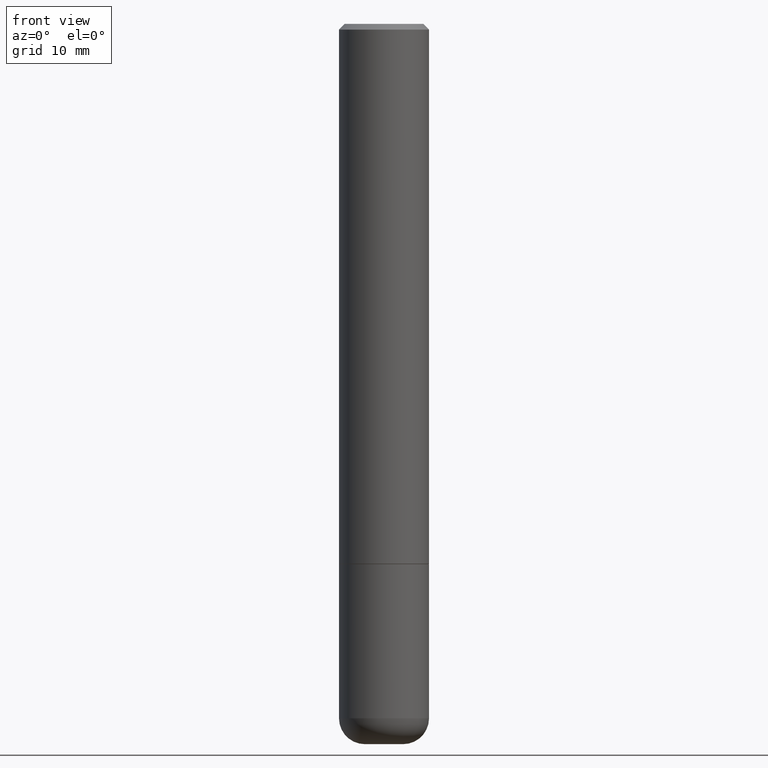
[diagram: clean part render]
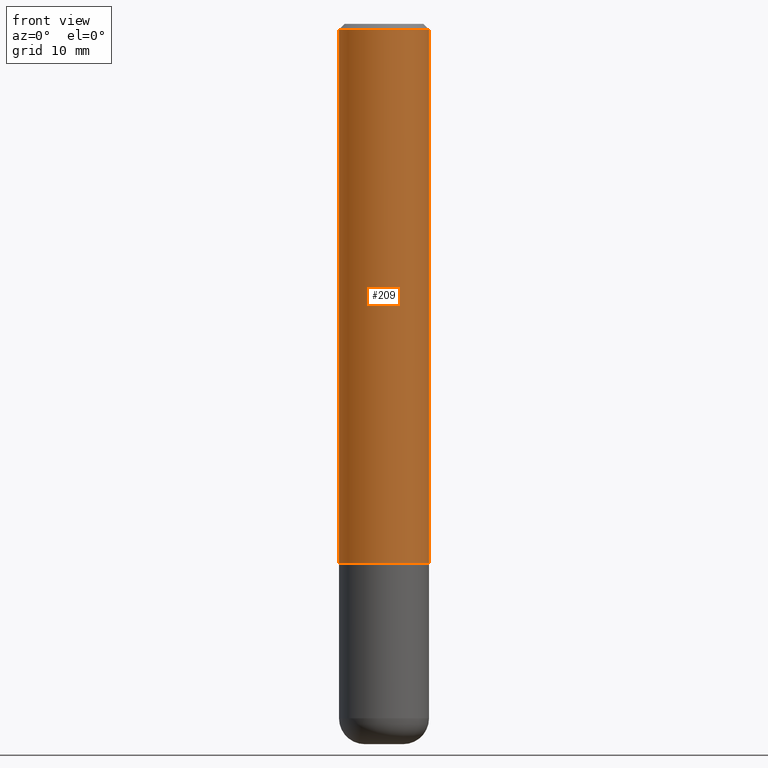
[diagram: same view with one face highlighted and labeled with its STEP entity id]
A machine part, front view. The second image highlights one B-rep face of the part: STEP entity #209.
In plain terms, the highlighted cylindrical surface (partial cylindrical patch) has radius 3.9688 mm, axis along (-0, 0, 1).
Its self-contained STEP definition (entity closure, byte-faithful):
#22 = ORIENTED_EDGE ( 'NONE', *, *, #246, .F. ) ;
#23 = CARTESIAN_POINT ( 'NONE',  ( 0.1562500000000001388, -1.091087918388480160E-15, 7.619026212181157383E-30 ) ) ;
#28 = DIRECTION ( 'NONE',  ( 1.000000000000000000, -6.982962677686266711E-15, 0.000000000000000000 ) ) ;
#36 = CARTESIAN_POINT ( 'NONE',  ( 0.1562500000000002220, -7.634123947380535662E-15, -1.874000000000000110 ) ) ;
#37 = DIRECTION ( 'NONE',  ( -2.445468806185136597E-29, 3.491481338843145583E-15, 1.000000000000000000 ) ) ;
#55 = ORIENTED_EDGE ( 'NONE', *, *, #94, .T. ) ;
#56 = CARTESIAN_POINT ( 'NONE',  ( 0.1562500000000000278, -1.141782438928665105E-15, -0.02000000000000003511 ) ) ;
#76 = VECTOR ( 'NONE', #135, 39.37007874015748143 ) ;
#94 = EDGE_CURVE ( 'NONE', #252, #357, #333, .T. ) ;
#128 = CARTESIAN_POINT ( 'NONE',  ( 4.582808542790945516E-29, -6.543036028992054911E-15, -1.874000000000000110 ) ) ;
#135 = DIRECTION ( 'NONE',  ( -2.445468806185136877E-29, 3.491481338843145188E-15, 1.000000000000000000 ) ) ;
#164 = CARTESIAN_POINT ( 'NONE',  ( -0.1562500000000000278, 1.021258291611616467E-15, -0.02000000000000003511 ) ) ;
#173 = DIRECTION ( 'NONE',  ( -2.445468806185136877E-29, 3.491481338843145188E-15, 1.000000000000000000 ) ) ;
#177 = EDGE_LOOP ( 'NONE', ( #22, #240, #55, #271 ) ) ;
#180 = VECTOR ( 'NONE', #173, 39.37007874015748143 ) ;
#201 = CARTESIAN_POINT ( 'NONE',  ( 0.000000000000000000, 0.000000000000000000, 0.000000000000000000 ) ) ;
#209 = ADVANCED_FACE ( 'NONE', ( #280 ), #257, .T. ) ;
#213 = VERTEX_POINT ( 'NONE', #164 ) ;
#214 = CIRCLE ( 'NONE', #310, 0.1562500000000002220 ) ;
#229 = DIRECTION ( 'NONE',  ( -2.445468806185136597E-29, 3.491481338843145583E-15, 1.000000000000000000 ) ) ;
#240 = ORIENTED_EDGE ( 'NONE', *, *, #275, .T. ) ;
#246 = EDGE_CURVE ( 'NONE', #389, #213, #332, .T. ) ;
#252 = VERTEX_POINT ( 'NONE', #36 ) ;
#257 = CYLINDRICAL_SURFACE ( 'NONE', #342, 0.1562500000000001388 ) ;
#261 = DIRECTION ( 'NONE',  ( 1.000000000000000000, -6.982962677686266711E-15, 4.876176775795936353E-29 ) ) ;
#271 = ORIENTED_EDGE ( 'NONE', *, *, #351, .F. ) ;
#275 = EDGE_CURVE ( 'NONE', #389, #252, #214, .T. ) ;
#280 = FACE_OUTER_BOUND ( 'NONE', #177, .T. ) ;
#298 = DIRECTION ( 'NONE',  ( 1.000000000000000000, -6.982962677686265922E-15, 0.000000000000000000 ) ) ;
#310 = AXIS2_PLACEMENT_3D ( 'NONE', #128, #37, #298 ) ;
#319 = CARTESIAN_POINT ( 'NONE',  ( 4.890937612370281041E-31, -6.982962677686302702E-17, -0.02000000000000003511 ) ) ;
#331 = CARTESIAN_POINT ( 'NONE',  ( -0.1562500000000001388, 1.110223024625157526E-15, -7.685836078523296765E-30 ) ) ;
#332 = LINE ( 'NONE', #331, #76 ) ;
#333 = LINE ( 'NONE', #23, #180 ) ;
#342 = AXIS2_PLACEMENT_3D ( 'NONE', #201, #229, #261 ) ;
#351 = EDGE_CURVE ( 'NONE', #213, #357, #392, .T. ) ;
#353 = DIRECTION ( 'NONE',  ( -2.445468806185136597E-29, 3.491481338843145583E-15, 1.000000000000000000 ) ) ;
#357 = VERTEX_POINT ( 'NONE', #56 ) ;
#369 = AXIS2_PLACEMENT_3D ( 'NONE', #319, #353, #28 ) ;
#389 = VERTEX_POINT ( 'NONE', #399 ) ;
#392 = CIRCLE ( 'NONE', #369, 0.1562500000000000278 ) ;
#399 = CARTESIAN_POINT ( 'NONE',  ( -0.1562500000000002220, -2.196209803259299803E-15, -1.874000000000000110 ) ) ;